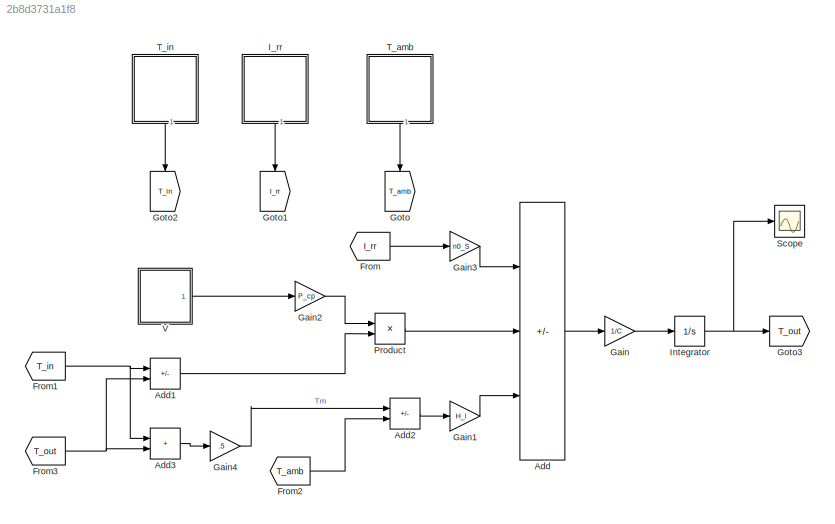
MODEL slx_2b8d3731a1f8
KIND model
CONFIG AbsTol = auto
CONFIG EnableMultiTasking = off
CONFIG FixedStep = auto
CONFIG MaxStep = auto
CONFIG MinStep = auto
CONFIG RelTol = 1e-3
CONFIG SampleTimeConstraint = Unconstrained
CONFIG SolverName = VariableStepAuto
CONFIG StartTime = 0.0
CONFIG StopTime = 100
BLOCK [Sum] Add
  IconShape = rectangular
  Inputs = +--
  Ports = [3, 1]
BLOCK [Sum] Add1
  IconShape = rectangular
  Inputs = -+
  Ports = [2, 1]
BLOCK [Sum] Add2
  IconShape = rectangular
  Inputs = +-
  Ports = [2, 1]
BLOCK [Sum] Add3
  IconShape = rectangular
  Ports = [2, 1]
BLOCK [From] From
  GotoTag = I_rr
BLOCK [From] From1
  GotoTag = T_in
BLOCK [From] From2
  GotoTag = T_amb
BLOCK [From] From3
  GotoTag = T_out
BLOCK [Gain] Gain
  Gain = 1/C
BLOCK [Gain] Gain1
  Gain = H_l
BLOCK [Gain] Gain2
  Gain = P_cp
BLOCK [Gain] Gain3
  Gain = n0_S
BLOCK [Gain] Gain4
  Gain = .5
BLOCK [Goto] Goto
  GotoTag = T_amb
  NameLocation = left
BLOCK [Goto] Goto1
  GotoTag = I_rr
  NameLocation = left
BLOCK [Goto] Goto2
  GotoTag = T_in
  NameLocation = left
BLOCK [Goto] Goto3
  GotoTag = T_out
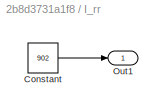
BLOCK [SubSystem] I_rr
  NameLocation = left
  Ports = [0, 1]
  RequestExecContextInheritance = off
BLOCK [Constant] I_rr/Constant
  Value = 902
BLOCK [Outport] I_rr/Out1
BLOCK [Integrator] Integrator
  NameLocation = left
  Ports = [1, 1]
BLOCK [Product] Product
  Ports = [2, 1]
BLOCK [Scope] Scope
  Floating = off
  NumInputPorts = 1
  Ports = [1]
  ScopeSpecificationString = Simulink.scopes.TimeScopeBlockCfg('CurrentConfiguration', extmgr.ConfigurationSet(extmgr.Configuration('Core','General UI',true),extmgr.Configuration('Core','Source UI',true),extmgr.Configuration('Sources','WiredSimulink',true),extmgr.Configuration('Visuals','Time Domain',true,'SerializedDisplays',{struct('MinYLimReal','303.1631','MaxYLimReal','303.5542','YLabelReal','','MinYLimMag','303.1631','Ma...<+1386ch>
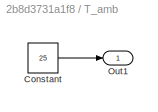
BLOCK [SubSystem] T_amb
  NameLocation = left
  Ports = [0, 1]
  RequestExecContextInheritance = off
BLOCK [Constant] T_amb/Constant
  Value = 25
BLOCK [Outport] T_amb/Out1
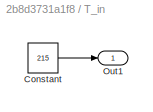
BLOCK [SubSystem] T_in
  NameLocation = left
  Ports = [0, 1]
  RequestExecContextInheritance = off
BLOCK [Constant] T_in/Constant
  Value = 215
BLOCK [Outport] T_in/Out1
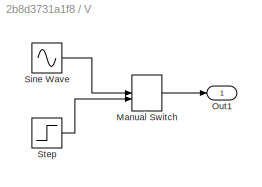
BLOCK [SubSystem] V
  Ports = [0, 1]
  RequestExecContextInheritance = off
BLOCK [ManualSwitch] V/Manual Switch
  CurrentSetting = 0
BLOCK [Outport] V/Out1
BLOCK [Sin] V/Sine Wave
  Ports = [0, 1]
  SampleTime = 0
BLOCK [Step] V/Step
  After = 7
  Before = 7
  SampleTime = 0
  Time = 50
LINE Add1:1 -> Product:2
LINE Add2:1 -> Gain1:1
LINE Add3:1 -> Gain4:1
LINE Add:1 -> Gain:1
NET From1:1 -> Add1:1, Add3:1
LINE From2:1 -> Add2:2
NET From3:1 -> Add1:2, Add3:2
LINE From:1 -> Gain3:1
LINE Gain1:1 -> Add:3
LINE Gain2:1 -> Product:1
LINE Gain3:1 -> Add:1
LINE Gain4:1 -> Add2:1
LINE Gain:1 -> Integrator:1
LINE I_rr/Constant:1 -> I_rr/Out1:1
LINE I_rr:1 -> Goto1:1
NET Integrator:1 -> Goto3:1, Scope:1
LINE Product:1 -> Add:2
LINE T_amb/Constant:1 -> T_amb/Out1:1
LINE T_amb:1 -> Goto:1
LINE T_in/Constant:1 -> T_in/Out1:1
LINE T_in:1 -> Goto2:1
LINE V/Manual Switch:1 -> V/Out1:1
LINE V/Sine Wave:1 -> V/Manual Switch:1
LINE V/Step:1 -> V/Manual Switch:2
LINE V:1 -> Gain2:1
note: NET lines group one-source signal fan-out (src -> all destinations, sorted); 1:1 wires keep LINE
